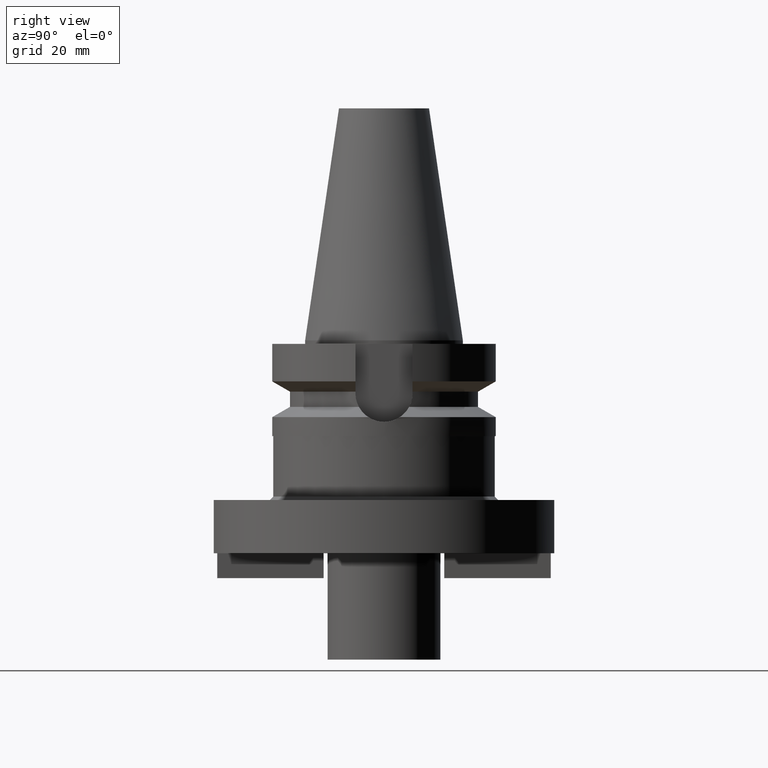
[diagram: clean part render]
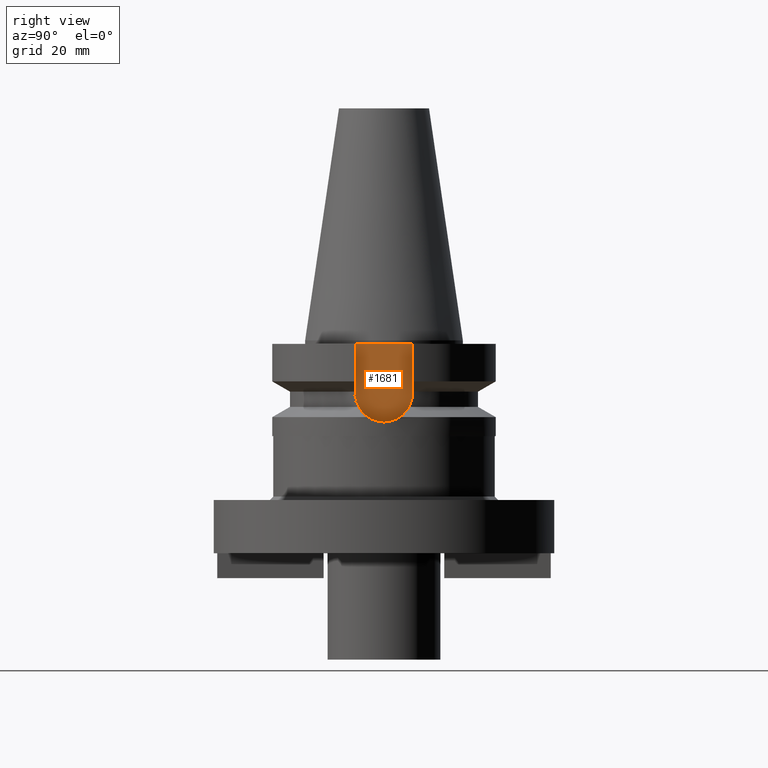
[diagram: same view with one face highlighted and labeled with its STEP entity id]
A machine part, right view. The second image highlights one B-rep face of the part: STEP entity #1681.
In plain terms, the highlighted planar face has unit normal (1, 0, 0).
Its self-contained STEP definition (entity closure, byte-faithful):
#124=DIRECTION('',(0.E0,-1.E0,0.E0));
#125=VECTOR('',#124,1.61E1);
#126=CARTESIAN_POINT('',(2.25E1,8.05E0,-1.E0));
#127=LINE('',#126,#125);
#307=DIRECTION('',(0.E0,0.E0,-1.E0));
#308=VECTOR('',#307,1.395E1);
#309=CARTESIAN_POINT('',(2.25E1,8.05E0,-1.E0));
#310=LINE('',#309,#308);
#314=CARTESIAN_POINT('',(2.25E1,0.E0,-1.495E1));
#315=DIRECTION('',(-1.E0,0.E0,0.E0));
#316=DIRECTION('',(0.E0,1.E0,0.E0));
#317=AXIS2_PLACEMENT_3D('',#314,#315,#316);
#322=CARTESIAN_POINT('',(2.25E1,0.E0,-1.495E1));
#323=DIRECTION('',(-1.E0,0.E0,0.E0));
#324=DIRECTION('',(0.E0,0.E0,-1.E0));
#325=AXIS2_PLACEMENT_3D('',#322,#323,#324);
#330=DIRECTION('',(0.E0,0.E0,1.E0));
#331=VECTOR('',#330,1.395E1);
#332=CARTESIAN_POINT('',(2.25E1,-8.05E0,-1.495E1));
#333=LINE('',#332,#331);
#1362=CARTESIAN_POINT('',(2.25E1,-8.05E0,-1.495E1));
#1363=VERTEX_POINT('',#1362);
#1364=CARTESIAN_POINT('',(2.25E1,0.E0,-2.3E1));
#1365=VERTEX_POINT('',#1364);
#1366=CARTESIAN_POINT('',(2.25E1,8.05E0,-1.495E1));
#1367=VERTEX_POINT('',#1366);
#1414=CARTESIAN_POINT('',(2.25E1,8.05E0,-1.E0));
#1415=VERTEX_POINT('',#1414);
#1416=CARTESIAN_POINT('',(2.25E1,-8.05E0,-1.E0));
#1417=VERTEX_POINT('',#1416);
#1666=CARTESIAN_POINT('',(2.25E1,0.E0,0.E0));
#1667=DIRECTION('',(1.E0,0.E0,0.E0));
#1668=DIRECTION('',(0.E0,0.E0,-1.E0));
#1669=AXIS2_PLACEMENT_3D('',#1666,#1667,#1668);
#1670=PLANE('',#1669);
#1671=ORIENTED_EDGE('',*,*,#1543,.F.);
#1673=ORIENTED_EDGE('',*,*,#1672,.T.);
#1675=ORIENTED_EDGE('',*,*,#1674,.T.);
#1677=ORIENTED_EDGE('',*,*,#1676,.T.);
#1678=ORIENTED_EDGE('',*,*,#1659,.T.);
#1679=EDGE_LOOP('',(#1671,#1673,#1675,#1677,#1678));
#1680=FACE_OUTER_BOUND('',#1679,.F.);
#318=CIRCLE('',#317,8.05E0);
#326=CIRCLE('',#325,8.05E0);
#1543=EDGE_CURVE('',#1415,#1417,#127,.T.);
#1659=EDGE_CURVE('',#1363,#1417,#333,.T.);
#1672=EDGE_CURVE('',#1415,#1367,#310,.T.);
#1674=EDGE_CURVE('',#1367,#1365,#318,.T.);
#1676=EDGE_CURVE('',#1365,#1363,#326,.T.);
#1681=ADVANCED_FACE('',(#1680),#1670,.T.);